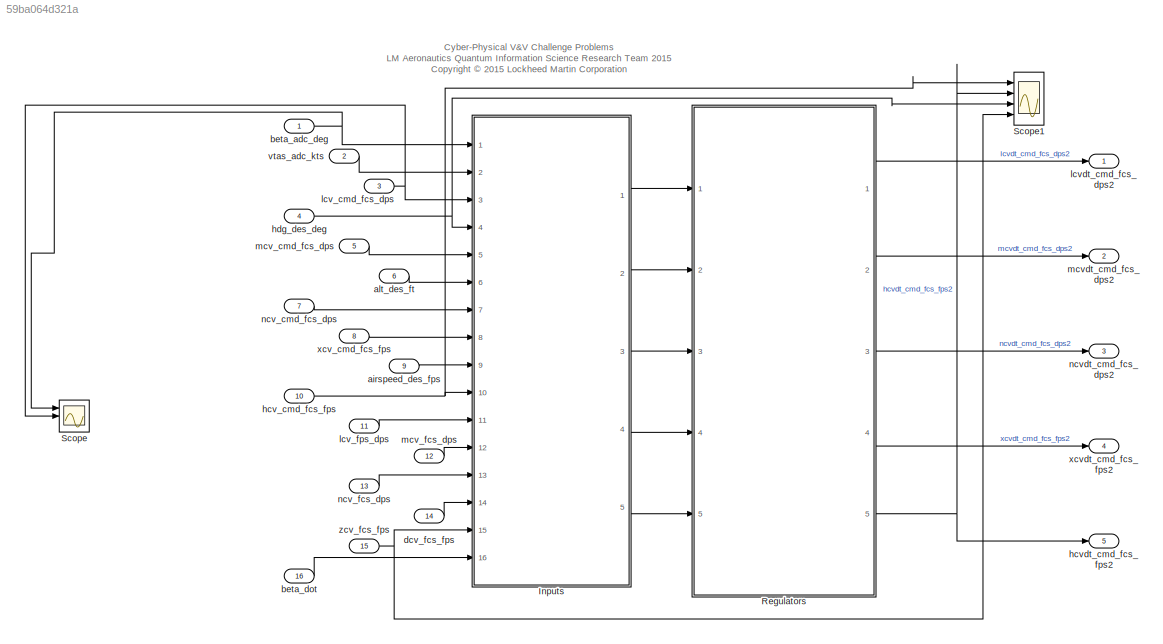
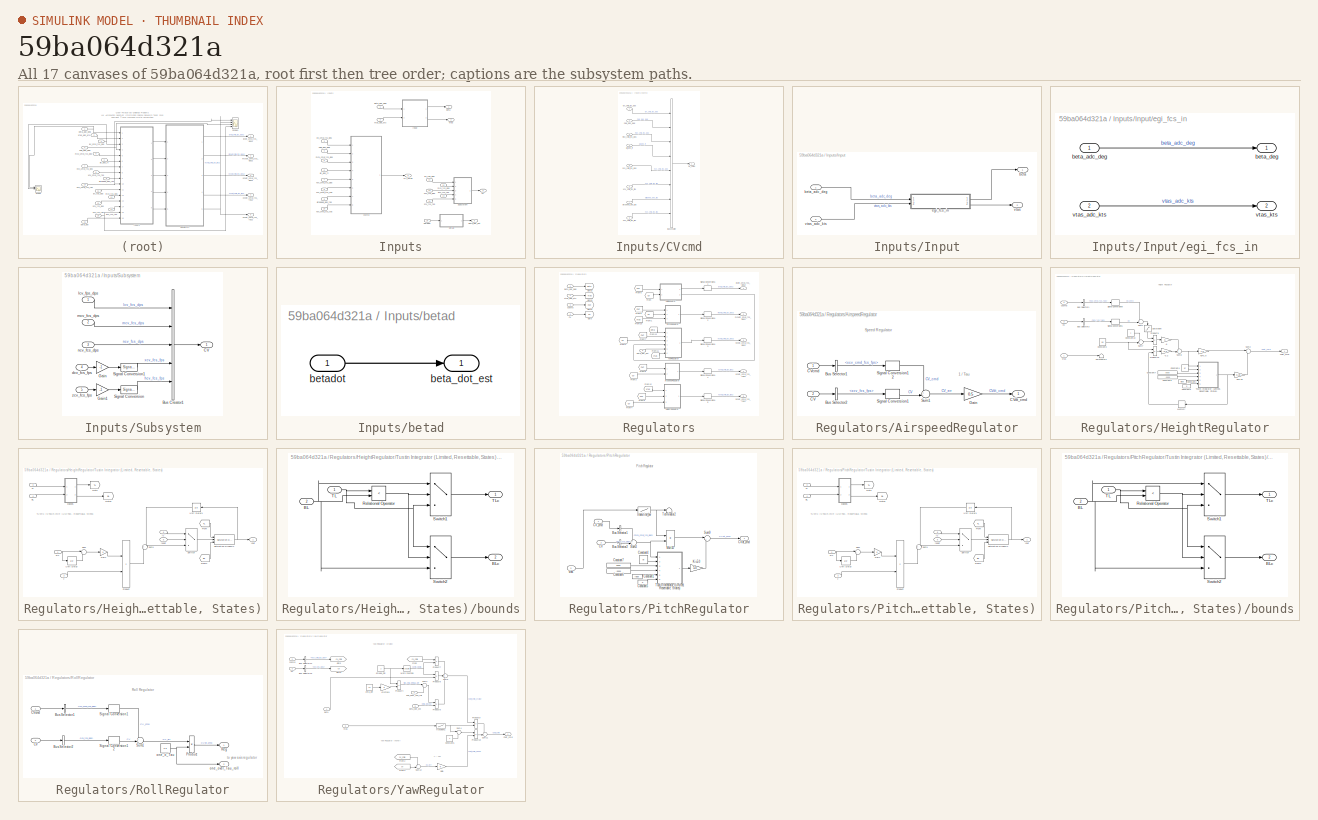
[diagram: thumbnail index - all 17 canvases of the model, root first then tree order]
MODEL slx_59ba064d321a
KIND model
CONFIG AbsTol = auto
CONFIG EnableMultiTasking = on
CONFIG FixedStep = .01
CONFIG MaxStep = auto
CONFIG MinStep = auto
CONFIG RelTol = 1e-3
CONFIG SampleTimeConstraint = Unconstrained
CONFIG Solver = ode3
CONFIG SolverName = ode3
CONFIG StartTime = 0.0
CONFIG StopTime = 10.0
WORKSPACE source: MAT-file member
WORKSPACE F = [47.5030304796 46.9110614304 47.028984707 45.6862216169 44.6182372756 0]
WORKSPACE FR = [-46.5418915863 -46.5418915863 -46.5418915863 -46.5418915863 -46.5418915863 -46.5418915863 -46.5418915863 -46.5418915863 -46.5418915863 -46.5418915863 -46.5418915863 -46.5418915863 ... (901 elements, 1x901)]
BLOCK [SubSystem] Inputs
  Ports = [16, 5]
  RequestExecContextInheritance = off
BLOCK [Outport] Inputs/CV
  IconDisplay = Port number
  Port = 4
BLOCK [SubSystem] Inputs/CVcmd
  Ports = [8, 1]
  RequestExecContextInheritance = off
BLOCK [BusCreator] Inputs/CVcmd/Bus Creator
  DisplayOption = bar
  InheritFromInputs = on
  Inputs = 8
  Ports = [8, 1]
BLOCK [Outport] Inputs/CVcmd/OL_Cmds
  IconDisplay = Port number
BLOCK [Inport] Inputs/CVcmd/airspeed_des_fps
  IconDisplay = Port number
  Port = 7
BLOCK [Inport] Inputs/CVcmd/alt_des_ft
  IconDisplay = Port number
  Port = 4
BLOCK [Inport] Inputs/CVcmd/hcv_cmd_fcs_fps
  IconDisplay = Port number
  Port = 8
BLOCK [Inport] Inputs/CVcmd/hdg_des_deg
  IconDisplay = Port number
  Port = 2
BLOCK [Inport] Inputs/CVcmd/lcv_cmd_fcs_dps 
  IconDisplay = Port number
BLOCK [Inport] Inputs/CVcmd/mcv_cmd_fcs_dps
  IconDisplay = Port number
  Port = 3
BLOCK [Inport] Inputs/CVcmd/ncv_cmd_fcs_dps
  IconDisplay = Port number
  Port = 5
BLOCK [Inport] Inputs/CVcmd/xcv_cmd_fcs_fps
  IconDisplay = Port number
  Port = 6
BLOCK [SubSystem] Inputs/Input
  Ports = [2, 2]
  RequestExecContextInheritance = off
BLOCK [Outport] Inputs/Input/beta
  IconDisplay = Port number
BLOCK [Inport] Inputs/Input/beta_adc_deg
  IconDisplay = Port number
BLOCK [SubSystem] Inputs/Input/egi_fcs_in
  Ports = [2, 2]
  RequestExecContextInheritance = off
BLOCK [Inport] Inputs/Input/egi_fcs_in/beta_adc_deg
  IconDisplay = Port number
BLOCK [Outport] Inputs/Input/egi_fcs_in/beta_deg
  IconDisplay = Port number
BLOCK [Inport] Inputs/Input/egi_fcs_in/vtas_adc_kts
  IconDisplay = Port number
  Port = 2
BLOCK [Outport] Inputs/Input/egi_fcs_in/vtas_kts
  IconDisplay = Port number
  Port = 2
BLOCK [Outport] Inputs/Input/vtas
  IconDisplay = Port number
  Port = 2
BLOCK [Inport] Inputs/Input/vtas_adc_kts
  IconDisplay = Port number
  Port = 2
BLOCK [Outport] Inputs/OL_Cmds
  IconDisplay = Port number
  Port = 3
BLOCK [SubSystem] Inputs/Subsystem
  Ports = [5, 1]
  RequestExecContextInheritance = off
BLOCK [BusCreator] Inputs/Subsystem/Bus Creator1
  DisplayOption = bar
  InheritFromInputs = on
  Inputs = 5
  Ports = [5, 1]
BLOCK [Outport] Inputs/Subsystem/CV
  IconDisplay = Port number
BLOCK [Gain] Inputs/Subsystem/Gain
  Gain = -1
  OutDataTypeStr = Inherit: Inherit via internal rule
  ParamDataTypeStr = Inherit: Inherit via internal rule
  SaturateOnIntegerOverflow = off
BLOCK [Gain] Inputs/Subsystem/Gain1
  Gain = -1
  OutDataTypeStr = Inherit: Inherit via internal rule
  ParamDataTypeStr = Inherit: Inherit via internal rule
  SaturateOnIntegerOverflow = off
BLOCK [SignalConversion] Inputs/Subsystem/Signal Conversion
  ConversionOutput = Contiguous copy
  OverrideOpt = off
BLOCK [SignalConversion] Inputs/Subsystem/Signal Conversion1
  ConversionOutput = Contiguous copy
  OverrideOpt = off
BLOCK [Inport] Inputs/Subsystem/dcv_fcs_fps
  IconDisplay = Port number
  Port = 4
BLOCK [Inport] Inputs/Subsystem/lcv_fps_dps
  IconDisplay = Port number
BLOCK [Inport] Inputs/Subsystem/mcv_fcs_dps
  IconDisplay = Port number
  Port = 2
BLOCK [Inport] Inputs/Subsystem/ncv_fcs_dps
  IconDisplay = Port number
  Port = 3
BLOCK [Inport] Inputs/Subsystem/zcv_fcs_fps
  IconDisplay = Port number
  Port = 5
BLOCK [Inport] Inputs/airspeed_des_fps
  IconDisplay = Port number
  Port = 9
BLOCK [Inport] Inputs/alt_des_ft
  IconDisplay = Port number
  Port = 6
BLOCK [Outport] Inputs/beta
  IconDisplay = Port number
BLOCK [Inport] Inputs/beta_adc_deg
  IconDisplay = Port number
BLOCK [Outport] Inputs/beta_dot_est
  IconDisplay = Port number
  Port = 5
BLOCK [SubSystem] Inputs/betad
  Ports = [1, 1]
  RequestExecContextInheritance = off
BLOCK [Outport] Inputs/betad/beta_dot_est
  IconDisplay = Port number
BLOCK [Inport] Inputs/betad/betadot
  IconDisplay = Port number
BLOCK [Inport] Inputs/betadot
  IconDisplay = Port number
  Port = 16
BLOCK [Inport] Inputs/dcv_fcs_fps
  IconDisplay = Port number
  Port = 14
BLOCK [Inport] Inputs/hcv_cmd_fcs_fps
  IconDisplay = Port number
  Port = 10
BLOCK [Inport] Inputs/hdg_des_deg
  IconDisplay = Port number
  Port = 4
BLOCK [Inport] Inputs/lcv_cmd_fcs_dps 
  IconDisplay = Port number
  Port = 3
BLOCK [Inport] Inputs/lcv_fps_dps
  IconDisplay = Port number
  Port = 11
BLOCK [Inport] Inputs/mcv_cmd_fcs_dps
  IconDisplay = Port number
  Port = 5
BLOCK [Inport] Inputs/mcv_fcs_dps
  IconDisplay = Port number
  Port = 12
BLOCK [Inport] Inputs/ncv_cmd_fcs_dps
  IconDisplay = Port number
  Port = 7
BLOCK [Inport] Inputs/ncv_fcs_dps
  IconDisplay = Port number
  Port = 13
BLOCK [Outport] Inputs/vtas
  IconDisplay = Port number
  Port = 2
BLOCK [Inport] Inputs/vtas_adc_kts
  IconDisplay = Port number
  Port = 2
BLOCK [Inport] Inputs/xcv_cmd_fcs_fps
  IconDisplay = Port number
  Port = 8
BLOCK [Inport] Inputs/zcv_fcs_fps
  IconDisplay = Port number
  Port = 15
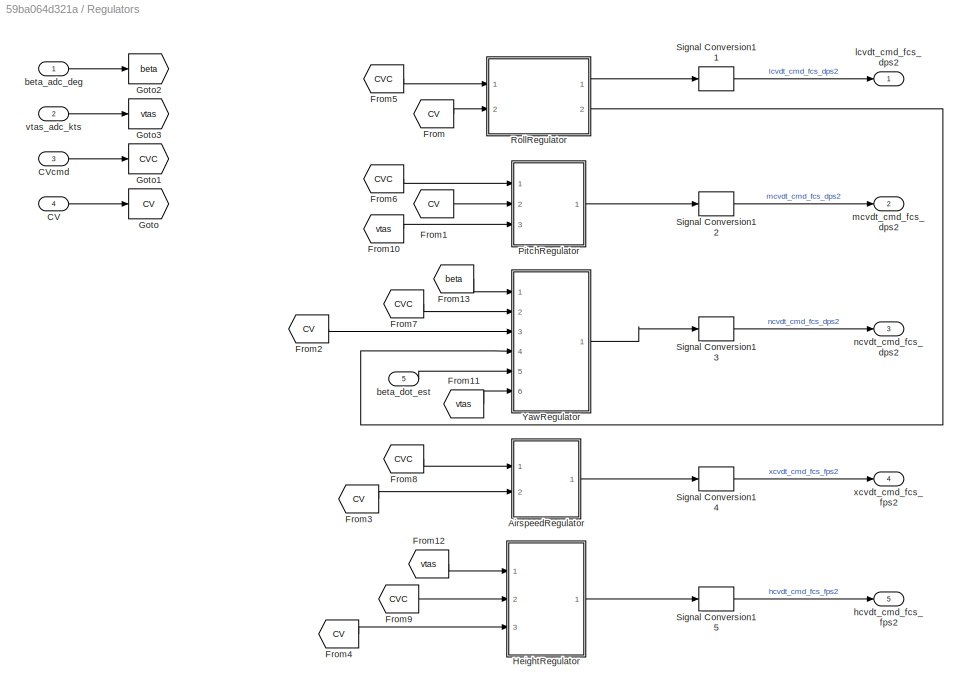
BLOCK [SubSystem] Regulators
  Ports = [5, 5]
  RequestExecContextInheritance = off
BLOCK [SubSystem] Regulators/AirspeedRegulator
  Ports = [2, 1]
  RequestExecContextInheritance = off
BLOCK [BusSelector] Regulators/AirspeedRegulator/Bus Selector1
  OutputAsBus = off
  OutputSignals = xcv_cmd_fcs_fps
  Ports = [1, 1]
BLOCK [BusSelector] Regulators/AirspeedRegulator/Bus Selector2
  OutputAsBus = off
  OutputSignals = xcv_fcs_fps
  Ports = [1, 1]
BLOCK [Inport] Regulators/AirspeedRegulator/CV
  IconDisplay = Port number
  Port = 2
BLOCK [Inport] Regulators/AirspeedRegulator/CVcmd
  IconDisplay = Port number
BLOCK [Outport] Regulators/AirspeedRegulator/CVdt_cmd
  IconDisplay = Port number
BLOCK [Gain] Regulators/AirspeedRegulator/Gain
  Gain = 0.5
  OutDataTypeStr = Inherit: Inherit via internal rule
  ParamDataTypeStr = Inherit: Inherit via internal rule
  SaturateOnIntegerOverflow = off
BLOCK [SignalConversion] Regulators/AirspeedRegulator/Signal Conversion1
  ConversionOutput = Contiguous copy
  OverrideOpt = on
BLOCK [SignalConversion] Regulators/AirspeedRegulator/Signal Conversion12
  ConversionOutput = Contiguous copy
  OverrideOpt = on
BLOCK [Sum] Regulators/AirspeedRegulator/Sum1
  IconShape = round
  Inputs = +-|
  Ports = [2, 1]
BLOCK [Inport] Regulators/CV
  IconDisplay = Port number
  Port = 4
BLOCK [Inport] Regulators/CVcmd
  IconDisplay = Port number
  Port = 3
BLOCK [From] Regulators/From
  GotoTag = CV
BLOCK [From] Regulators/From1
  GotoTag = CV
BLOCK [From] Regulators/From10
  GotoTag = vtas
BLOCK [From] Regulators/From11
  GotoTag = vtas
BLOCK [From] Regulators/From12
  GotoTag = vtas
BLOCK [From] Regulators/From13
  GotoTag = beta
BLOCK [From] Regulators/From2
  GotoTag = CV
BLOCK [From] Regulators/From3
  GotoTag = CV
BLOCK [From] Regulators/From4
  GotoTag = CV
BLOCK [From] Regulators/From5
  GotoTag = CVC
BLOCK [From] Regulators/From6
  GotoTag = CVC
BLOCK [From] Regulators/From7
  GotoTag = CVC
BLOCK [From] Regulators/From8
  GotoTag = CVC
BLOCK [From] Regulators/From9
  GotoTag = CVC
BLOCK [Goto] Regulators/Goto
  GotoTag = CV
BLOCK [Goto] Regulators/Goto1
  GotoTag = CVC
BLOCK [Goto] Regulators/Goto2
  GotoTag = beta
BLOCK [Goto] Regulators/Goto3
  GotoTag = vtas
BLOCK [SubSystem] Regulators/HeightRegulator
  Ports = [3, 1]
  RequestExecContextInheritance = off
BLOCK [Gain] Regulators/HeightRegulator/-0.2
  Gain = -0.2
  OutDataTypeStr = Inherit: Inherit via internal rule
  ParamDataTypeStr = Inherit: Inherit via internal rule
  SaturateOnIntegerOverflow = off
BLOCK [Gain] Regulators/HeightRegulator/-8
  OutDataTypeStr = Inherit: Inherit via internal rule
  ParamDataTypeStr = Inherit: Inherit via internal rule
  SaturateOnIntegerOverflow = off
BLOCK [BusSelector] Regulators/HeightRegulator/Bus Selector1
  OutputAsBus = off
  OutputSignals = hcv_cmd_fcs_fps
  Ports = [1, 1]
BLOCK [BusSelector] Regulators/HeightRegulator/Bus Selector3
  OutputAsBus = off
  OutputSignals = hcv_fcs_fps
  Ports = [1, 1]
BLOCK [Inport] Regulators/HeightRegulator/CV
  IconDisplay = Port number
  Port = 3
BLOCK [Inport] Regulators/HeightRegulator/CVcmd
  IconDisplay = Port number
  Port = 2
BLOCK [Outport] Regulators/HeightRegulator/CVdt_cmd
  IconDisplay = Port number
BLOCK [Constant] Regulators/HeightRegulator/Constant1
  Value = false
BLOCK [Constant] Regulators/HeightRegulator/Constant10
BLOCK [Constant] Regulators/HeightRegulator/Constant3
  Value = 0.0
BLOCK [Constant] Regulators/HeightRegulator/Constant4
  Value = dt
BLOCK [Constant] Regulators/HeightRegulator/Constant5
  Value = 0
BLOCK [Constant] Regulators/HeightRegulator/Constant6
  Value = -9999
BLOCK [Constant] Regulators/HeightRegulator/Constant7
  Value = 9999
BLOCK [Gain] Regulators/HeightRegulator/Ki=0.25
  Gain = 0.25
  OutDataTypeStr = Inherit: Inherit via internal rule
  ParamDataTypeStr = Inherit: Inherit via internal rule
  SaturateOnIntegerOverflow = off
BLOCK [Gain] Regulators/HeightRegulator/Kp=1.0
  Gain = 1.0
  OutDataTypeStr = Inherit: Inherit via internal rule
  ParamDataTypeStr = Inherit: Inherit via internal rule
  SaturateOnIntegerOverflow = off
BLOCK [Memory] Regulators/HeightRegulator/Memory
BLOCK [Product] Regulators/HeightRegulator/Product10
  InputSameDT = off
  Ports = [2, 1]
  RndMeth = Floor
BLOCK [Product] Regulators/HeightRegulator/Product9
  InputSameDT = off
  Ports = [2, 1]
  RndMeth = Floor
BLOCK [Saturate] Regulators/HeightRegulator/Saturation
  InputPortMap = u0
  LowerLimit = -1
  Ports = [1, 1]
  UpperLimit = 1
BLOCK [SignalConversion] Regulators/HeightRegulator/Signal Conversion1
  ConversionOutput = Contiguous copy
  OverrideOpt = on
BLOCK [SignalConversion] Regulators/HeightRegulator/Signal Conversion9
  ConversionOutput = Contiguous copy
  OverrideOpt = on
BLOCK [Sum] Regulators/HeightRegulator/Sum1
  IconShape = round
  Inputs = +-|
  Ports = [2, 1]
BLOCK [Sum] Regulators/HeightRegulator/Sum2
  IconShape = round
  Inputs = |++
  Ports = [2, 1]
BLOCK [Sum] Regulators/HeightRegulator/Sum7
  IconShape = round
  InputSameDT = off
  Inputs = +-|
  OutDataTypeStr = Inherit: Inherit via internal rule
  Ports = [2, 1]
  SaturateOnIntegerOverflow = off
BLOCK [Sum] Regulators/HeightRegulator/Sum8
  IconShape = round
  InputSameDT = off
  Inputs = ++|
  OutDataTypeStr = Inherit: Inherit via internal rule
  Ports = [2, 1]
  SaturateOnIntegerOverflow = off
BLOCK [Terminator] Regulators/HeightRegulator/Terminator2
BLOCK [SubSystem] Regulators/HeightRegulator/Tustin Integrator (Limited, Resettable, States)
  Ports = [6, 1]
  RequestExecContextInheritance = off
BLOCK [Inport] Regulators/HeightRegulator/Tustin Integrator (Limited, Resettable, States)/BL
  IconDisplay = Port number
  Port = 4
BLOCK [From] Regulators/HeightRegulator/Tustin Integrator (Limited, Resettable, States)/From
  GotoTag = TL
BLOCK [From] Regulators/HeightRegulator/Tustin Integrator (Limited, Resettable, States)/From1
  GotoTag = BL
BLOCK [Gain] Regulators/HeightRegulator/Tustin Integrator (Limited, Resettable, States)/Gain
  Gain = .5
  OutDataTypeStr = Inherit: Inherit via internal rule
  ParamDataTypeStr = Inherit: Inherit via internal rule
  SaturateOnIntegerOverflow = off
BLOCK [Goto] Regulators/HeightRegulator/Tustin Integrator (Limited, Resettable, States)/Goto
  GotoTag = TL
BLOCK [Goto] Regulators/HeightRegulator/Tustin Integrator (Limited, Resettable, States)/Goto1
  GotoTag = BL
BLOCK [Product] Regulators/HeightRegulator/Tustin Integrator (Limited, Resettable, States)/Product
  InputSameDT = off
  OutDataTypeStr = Inherit: Inherit via internal rule
  Ports = [2, 1]
  SaturateOnIntegerOverflow = off
BLOCK [Reference] Regulators/HeightRegulator/Tustin Integrator (Limited, Resettable, States)/Saturation Dynamic  REF=simulink/Discontinuities/Saturation
Dynamic
  Ports = [3, 1]
  SourceBlock = simulink/Discontinuities/Saturation\nDynamic
  SourceProductBaseCode = SL
  SourceProductName = Simulink
  SourceType = Saturation Dynamic
BLOCK [Sum] Regulators/HeightRegulator/Tustin Integrator (Limited, Resettable, States)/Sum
  IconShape = round
  InputSameDT = off
  Inputs = |++
  OutDataTypeStr = Inherit: Inherit via internal rule
  Ports = [2, 1]
  SaturateOnIntegerOverflow = off
BLOCK [Sum] Regulators/HeightRegulator/Tustin Integrator (Limited, Resettable, States)/Sum1
  IconShape = round
  InputSameDT = off
  OutDataTypeStr = Inherit: Inherit via internal rule
  Ports = [2, 1]
  SaturateOnIntegerOverflow = off
BLOCK [Switch] Regulators/HeightRegulator/Tustin Integrator (Limited, Resettable, States)/Switch
  Criteria = u2 ~= 0
  InputSameDT = off
  SaturateOnIntegerOverflow = off
  Threshold = 0.5
BLOCK [Inport] Regulators/HeightRegulator/Tustin Integrator (Limited, Resettable, States)/T
  IconDisplay = Port number
  Port = 2
BLOCK [Inport] Regulators/HeightRegulator/Tustin Integrator (Limited, Resettable, States)/TL
  IconDisplay = Port number
  Port = 3
BLOCK [UnitDelay] Regulators/HeightRegulator/Tustin Integrator (Limited, Resettable, States)/Unit Delay
  InputProcessing = Elements as channels (sample based)
  SampleTime = -1
BLOCK [UnitDelay] Regulators/HeightRegulator/Tustin Integrator (Limited, Resettable, States)/Unit Delay1
  InputProcessing = Elements as channels (sample based)
  SampleTime = -1
BLOCK [SubSystem] Regulators/HeightRegulator/Tustin Integrator (Limited, Resettable, States)/bounds
  Ports = [2, 2]
  RequestExecContextInheritance = off
BLOCK [Inport] Regulators/HeightRegulator/Tustin Integrator (Limited, Resettable, States)/bounds/BL
  IconDisplay = Port number
  Port = 2
BLOCK [Outport] Regulators/HeightRegulator/Tustin Integrator (Limited, Resettable, States)/bounds/BLc
  IconDisplay = Port number
  Port = 2
BLOCK [RelationalOperator] Regulators/HeightRegulator/Tustin Integrator (Limited, Resettable, States)/bounds/Relational Operator
  InputSameDT = off
  Operator = <
  OutDataTypeStr = boolean
  Ports = [2, 1]
BLOCK [Switch] Regulators/HeightRegulator/Tustin Integrator (Limited, Resettable, States)/bounds/Switch1
  Criteria = u2 ~= 0
  InputSameDT = off
  SaturateOnIntegerOverflow = off
  Threshold = 0.5
BLOCK [Switch] Regulators/HeightRegulator/Tustin Integrator (Limited, Resettable, States)/bounds/Switch2
  Criteria = u2 ~= 0
  InputSameDT = off
  SaturateOnIntegerOverflow = off
  Threshold = 0.5
BLOCK [Inport] Regulators/HeightRegulator/Tustin Integrator (Limited, Resettable, States)/bounds/TL
  IconDisplay = Port number
BLOCK [Outport] Regulators/HeightRegulator/Tustin Integrator (Limited, Resettable, States)/bounds/TLc
  IconDisplay = Port number
BLOCK [Inport] Regulators/HeightRegulator/Tustin Integrator (Limited, Resettable, States)/ic
  IconDisplay = Port number
  Port = 6
BLOCK [Inport] Regulators/HeightRegulator/Tustin Integrator (Limited, Resettable, States)/reset
  IconDisplay = Port number
  Port = 5
BLOCK [Inport] Regulators/HeightRegulator/Tustin Integrator (Limited, Resettable, States)/xin
  IconDisplay = Port number
BLOCK [Outport] Regulators/HeightRegulator/Tustin Integrator (Limited, Resettable, States)/yout
  IconDisplay = Port number
BLOCK [Inport] Regulators/HeightRegulator/vtas
  IconDisplay = Port number
BLOCK [SubSystem] Regulators/PitchRegulator
  Ports = [3, 1]
  RequestExecContextInheritance = off
BLOCK [BusSelector] Regulators/PitchRegulator/Bus Selector1
  OutputAsBus = off
  OutputSignals = mcv_cmd_fcs_dps
  Ports = [1, 1]
BLOCK [BusSelector] Regulators/PitchRegulator/Bus Selector2
  OutputAsBus = off
  OutputSignals = mcv_fcs_dps
  Ports = [1, 1]
BLOCK [Inport] Regulators/PitchRegulator/CV
  IconDisplay = Port number
  Port = 2
BLOCK [Inport] Regulators/PitchRegulator/CV_cmd
  IconDisplay = Port number
BLOCK [Outport] Regulators/PitchRegulator/CVdt_cmd
  IconDisplay = Port number
BLOCK [Constant] Regulators/PitchRegulator/Constant1
  Value = false
BLOCK [Constant] Regulators/PitchRegulator/Constant4
  Value = dt
BLOCK [Constant] Regulators/PitchRegulator/Constant5
  Value = 0
BLOCK [Constant] Regulators/PitchRegulator/Constant6
  Value = -9999
BLOCK [Constant] Regulators/PitchRegulator/Constant7
  Value = 9999
BLOCK [Gain] Regulators/PitchRegulator/Ki=5.0
  Gain = 5.0
  OutDataTypeStr = Inherit: Inherit via internal rule
  ParamDataTypeStr = Inherit: Inherit via internal rule
  SaturateOnIntegerOverflow = off
BLOCK [Product] Regulators/PitchRegulator/Mult10
  Ports = [2, 1]
  RndMeth = Floor
BLOCK [Sum] Regulators/PitchRegulator/Sum3
  IconShape = round
  Inputs = +-|
  Ports = [2, 1]
BLOCK [Sum] Regulators/PitchRegulator/Sum9
  IconShape = round
  Inputs = |++
  Ports = [2, 1]
BLOCK [Terminator] Regulators/PitchRegulator/Terminator2
BLOCK [SubSystem] Regulators/PitchRegulator/Tustin Integrator (Limited, Resettable, States)
  Ports = [6, 1]
  RequestExecContextInheritance = off
BLOCK [Inport] Regulators/PitchRegulator/Tustin Integrator (Limited, Resettable, States)/BL
  IconDisplay = Port number
  Port = 4
BLOCK [From] Regulators/PitchRegulator/Tustin Integrator (Limited, Resettable, States)/From
  GotoTag = TL
BLOCK [From] Regulators/PitchRegulator/Tustin Integrator (Limited, Resettable, States)/From1
  GotoTag = BL
BLOCK [Gain] Regulators/PitchRegulator/Tustin Integrator (Limited, Resettable, States)/Gain
  Gain = .5
  OutDataTypeStr = Inherit: Inherit via internal rule
  ParamDataTypeStr = Inherit: Inherit via internal rule
  SaturateOnIntegerOverflow = off
BLOCK [Goto] Regulators/PitchRegulator/Tustin Integrator (Limited, Resettable, States)/Goto
  GotoTag = TL
BLOCK [Goto] Regulators/PitchRegulator/Tustin Integrator (Limited, Resettable, States)/Goto1
  GotoTag = BL
BLOCK [Product] Regulators/PitchRegulator/Tustin Integrator (Limited, Resettable, States)/Product
  InputSameDT = off
  OutDataTypeStr = Inherit: Inherit via internal rule
  Ports = [2, 1]
  SaturateOnIntegerOverflow = off
BLOCK [Reference] Regulators/PitchRegulator/Tustin Integrator (Limited, Resettable, States)/Saturation Dynamic  REF=simulink/Discontinuities/Saturation
Dynamic
  Ports = [3, 1]
  SourceBlock = simulink/Discontinuities/Saturation\nDynamic
  SourceProductBaseCode = SL
  SourceProductName = Simulink
  SourceType = Saturation Dynamic
BLOCK [Sum] Regulators/PitchRegulator/Tustin Integrator (Limited, Resettable, States)/Sum
  IconShape = round
  InputSameDT = off
  Inputs = |++
  OutDataTypeStr = Inherit: Inherit via internal rule
  Ports = [2, 1]
  SaturateOnIntegerOverflow = off
BLOCK [Sum] Regulators/PitchRegulator/Tustin Integrator (Limited, Resettable, States)/Sum1
  IconShape = round
  InputSameDT = off
  OutDataTypeStr = Inherit: Inherit via internal rule
  Ports = [2, 1]
  SaturateOnIntegerOverflow = off
BLOCK [Switch] Regulators/PitchRegulator/Tustin Integrator (Limited, Resettable, States)/Switch
  Criteria = u2 ~= 0
  InputSameDT = off
  SaturateOnIntegerOverflow = off
  Threshold = 0.5
BLOCK [Inport] Regulators/PitchRegulator/Tustin Integrator (Limited, Resettable, States)/T
  IconDisplay = Port number
  Port = 2
BLOCK [Inport] Regulators/PitchRegulator/Tustin Integrator (Limited, Resettable, States)/TL
  IconDisplay = Port number
  Port = 3
BLOCK [UnitDelay] Regulators/PitchRegulator/Tustin Integrator (Limited, Resettable, States)/Unit Delay
  InputProcessing = Elements as channels (sample based)
  SampleTime = -1
BLOCK [UnitDelay] Regulators/PitchRegulator/Tustin Integrator (Limited, Resettable, States)/Unit Delay1
  InputProcessing = Elements as channels (sample based)
  SampleTime = -1
BLOCK [SubSystem] Regulators/PitchRegulator/Tustin Integrator (Limited, Resettable, States)/bounds
  Ports = [2, 2]
  RequestExecContextInheritance = off
BLOCK [Inport] Regulators/PitchRegulator/Tustin Integrator (Limited, Resettable, States)/bounds/BL
  IconDisplay = Port number
  Port = 2
BLOCK [Outport] Regulators/PitchRegulator/Tustin Integrator (Limited, Resettable, States)/bounds/BLc
  IconDisplay = Port number
  Port = 2
BLOCK [RelationalOperator] Regulators/PitchRegulator/Tustin Integrator (Limited, Resettable, States)/bounds/Relational Operator
  InputSameDT = off
  Operator = <
  OutDataTypeStr = boolean
  Ports = [2, 1]
BLOCK [Switch] Regulators/PitchRegulator/Tustin Integrator (Limited, Resettable, States)/bounds/Switch1
  Criteria = u2 ~= 0
  InputSameDT = off
  SaturateOnIntegerOverflow = off
  Threshold = 0.5
BLOCK [Switch] Regulators/PitchRegulator/Tustin Integrator (Limited, Resettable, States)/bounds/Switch2
  Criteria = u2 ~= 0
  InputSameDT = off
  SaturateOnIntegerOverflow = off
  Threshold = 0.5
BLOCK [Inport] Regulators/PitchRegulator/Tustin Integrator (Limited, Resettable, States)/bounds/TL
  IconDisplay = Port number
BLOCK [Outport] Regulators/PitchRegulator/Tustin Integrator (Limited, Resettable, States)/bounds/TLc
  IconDisplay = Port number
BLOCK [Inport] Regulators/PitchRegulator/Tustin Integrator (Limited, Resettable, States)/ic
  IconDisplay = Port number
  Port = 6
BLOCK [Inport] Regulators/PitchRegulator/Tustin Integrator (Limited, Resettable, States)/reset
  IconDisplay = Port number
  Port = 5
BLOCK [Inport] Regulators/PitchRegulator/Tustin Integrator (Limited, Resettable, States)/xin
  IconDisplay = Port number
BLOCK [Outport] Regulators/PitchRegulator/Tustin Integrator (Limited, Resettable, States)/yout
  IconDisplay = Port number
BLOCK [Lookup] Regulators/PitchRegulator/transition_bvr
  InputValues = [120 185]
  SaturateOnIntegerOverflow = off
  Table = [15 20]
BLOCK [Inport] Regulators/PitchRegulator/vtas
  IconDisplay = Port number
  Port = 3
BLOCK [SubSystem] Regulators/RollRegulator
  Ports = [2, 2]
  RequestExecContextInheritance = off
BLOCK [BusSelector] Regulators/RollRegulator/Bus Selector1
  OutputAsBus = off
  OutputSignals = lcv_cmd_fcs_dps
  Ports = [1, 1]
BLOCK [BusSelector] Regulators/RollRegulator/Bus Selector2
  OutputAsBus = off
  OutputSignals = lcv_fcs_dps
  Ports = [1, 1]
BLOCK [Inport] Regulators/RollRegulator/CV
  IconDisplay = Port number
  Port = 2
BLOCK [Inport] Regulators/RollRegulator/CVcmd
  IconDisplay = Port number
BLOCK [Product] Regulators/RollRegulator/Product
  InputSameDT = off
  OutDataTypeStr = Inherit: Inherit via internal rule
  Ports = [2, 1]
  SaturateOnIntegerOverflow = off
BLOCK [Outport] Regulators/RollRegulator/Reg
  IconDisplay = Port number
BLOCK [SignalConversion] Regulators/RollRegulator/Signal Conversion1
  ConversionOutput = Contiguous copy
  OverrideOpt = on
BLOCK [SignalConversion] Regulators/RollRegulator/Signal Conversion12
  ConversionOutput = Contiguous copy
  OverrideOpt = on
BLOCK [Sum] Regulators/RollRegulator/Sum1
  IconShape = round
  Inputs = +-|
  Ports = [2, 1]
BLOCK [Constant] Regulators/RollRegulator/one_o_Tau
  Value = 2.5
BLOCK [Outport] Regulators/RollRegulator/one_over_Tau_roll
  IconDisplay = Port number
  Port = 2
BLOCK [SignalConversion] Regulators/Signal Conversion11
  ConversionOutput = Contiguous copy
  OverrideOpt = on
BLOCK [SignalConversion] Regulators/Signal Conversion12
  ConversionOutput = Contiguous copy
  OverrideOpt = on
BLOCK [SignalConversion] Regulators/Signal Conversion13
  ConversionOutput = Contiguous copy
  OverrideOpt = on
BLOCK [SignalConversion] Regulators/Signal Conversion14
  ConversionOutput = Contiguous copy
  OverrideOpt = on
BLOCK [SignalConversion] Regulators/Signal Conversion15
  ConversionOutput = Contiguous copy
  OverrideOpt = on
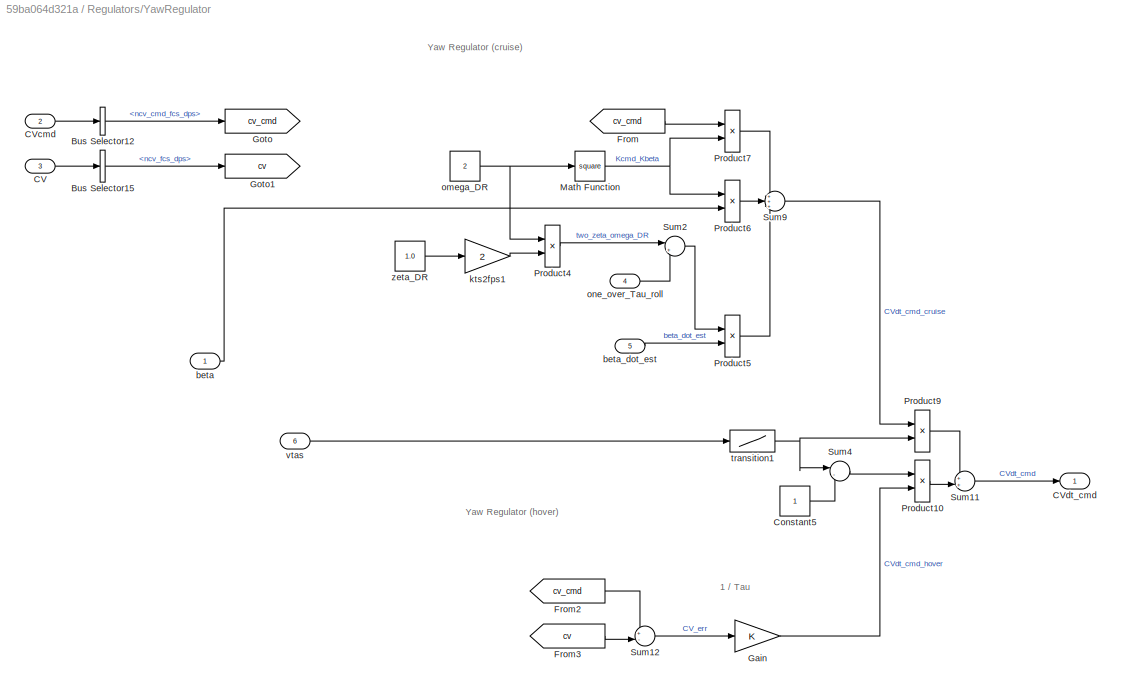
BLOCK [SubSystem] Regulators/YawRegulator
  Ports = [6, 1]
  RequestExecContextInheritance = off
BLOCK [BusSelector] Regulators/YawRegulator/Bus Selector12
  OutputAsBus = off
  OutputSignals = ncv_cmd_fcs_dps
  Ports = [1, 1]
BLOCK [BusSelector] Regulators/YawRegulator/Bus Selector15
  OutputAsBus = off
  OutputSignals = ncv_fcs_dps
  Ports = [1, 1]
BLOCK [Inport] Regulators/YawRegulator/CV
  IconDisplay = Port number
  Port = 3
BLOCK [Inport] Regulators/YawRegulator/CVcmd
  IconDisplay = Port number
  Port = 2
BLOCK [Outport] Regulators/YawRegulator/CVdt_cmd
  IconDisplay = Port number
BLOCK [Constant] Regulators/YawRegulator/Constant5
BLOCK [From] Regulators/YawRegulator/From
  GotoTag = cv_cmd
BLOCK [From] Regulators/YawRegulator/From2
  GotoTag = cv_cmd
BLOCK [From] Regulators/YawRegulator/From3
  GotoTag = cv
BLOCK [Gain] Regulators/YawRegulator/Gain
  OutDataTypeStr = Inherit: Inherit via internal rule
  ParamDataTypeStr = Inherit: Inherit via internal rule
  SaturateOnIntegerOverflow = off
BLOCK [Goto] Regulators/YawRegulator/Goto
  GotoTag = cv_cmd
BLOCK [Goto] Regulators/YawRegulator/Goto1
  GotoTag = cv
BLOCK [Math] Regulators/YawRegulator/Math Function
  Operator = square
  Ports = [1, 1]
BLOCK [Product] Regulators/YawRegulator/Product10
  InputSameDT = off
  Ports = [2, 1]
  RndMeth = Floor
BLOCK [Product] Regulators/YawRegulator/Product4
  InputSameDT = off
  Ports = [2, 1]
  RndMeth = Floor
BLOCK [Product] Regulators/YawRegulator/Product5
  InputSameDT = off
  Ports = [2, 1]
  RndMeth = Floor
BLOCK [Product] Regulators/YawRegulator/Product6
  InputSameDT = off
  Ports = [2, 1]
  RndMeth = Floor
BLOCK [Product] Regulators/YawRegulator/Product7
  InputSameDT = off
  Ports = [2, 1]
  RndMeth = Floor
BLOCK [Product] Regulators/YawRegulator/Product9
  InputSameDT = off
  Ports = [2, 1]
  RndMeth = Floor
BLOCK [Sum] Regulators/YawRegulator/Sum11
  IconShape = round
  InputSameDT = off
  Inputs = ++|
  OutDataTypeStr = Inherit: Inherit via internal rule
  Ports = [2, 1]
  SaturateOnIntegerOverflow = off
BLOCK [Sum] Regulators/YawRegulator/Sum12
  IconShape = round
  Inputs = +-|
  Ports = [2, 1]
BLOCK [Sum] Regulators/YawRegulator/Sum2
  IconShape = round
  Inputs = |+-
  Ports = [2, 1]
BLOCK [Sum] Regulators/YawRegulator/Sum4
  IconShape = round
  InputSameDT = off
  Inputs = |-+
  OutDataTypeStr = Inherit: Inherit via internal rule
  Ports = [2, 1]
  SaturateOnIntegerOverflow = off
BLOCK [Sum] Regulators/YawRegulator/Sum9
  IconShape = round
  Inputs = +++
  Ports = [3, 1]
BLOCK [Inport] Regulators/YawRegulator/beta
  IconDisplay = Port number
BLOCK [Inport] Regulators/YawRegulator/beta_dot_est
  IconDisplay = Port number
  Port = 5
BLOCK [Gain] Regulators/YawRegulator/kts2fps1
  Gain = 2
  OutDataTypeStr = Inherit: Inherit via internal rule
  ParamDataTypeStr = Inherit: Inherit via internal rule
  SaturateOnIntegerOverflow = off
BLOCK [Constant] Regulators/YawRegulator/omega_DR
  Value = 2
BLOCK [Inport] Regulators/YawRegulator/one_over_Tau_roll
  IconDisplay = Port number
  Port = 4
BLOCK [Lookup] Regulators/YawRegulator/transition1
  InputValues = transition_v
  SaturateOnIntegerOverflow = off
  Table = transition_y
BLOCK [Inport] Regulators/YawRegulator/vtas
  IconDisplay = Port number
  Port = 6
BLOCK [Constant] Regulators/YawRegulator/zeta_DR
  Value = 1.0
BLOCK [Inport] Regulators/beta_adc_deg
  IconDisplay = Port number
BLOCK [Inport] Regulators/beta_dot_est
  IconDisplay = Port number
  Port = 5
BLOCK [Outport] Regulators/hcvdt_cmd_fcs_fps2
  IconDisplay = Port number
  Port = 5
BLOCK [Outport] Regulators/lcvdt_cmd_fcs_dps2
  IconDisplay = Port number
BLOCK [Outport] Regulators/mcvdt_cmd_fcs_dps2
  IconDisplay = Port number
  Port = 2
BLOCK [Outport] Regulators/ncvdt_cmd_fcs_dps2
  IconDisplay = Port number
  Port = 3
BLOCK [Inport] Regulators/vtas_adc_kts
  IconDisplay = Port number
  Port = 2
BLOCK [Outport] Regulators/xcvdt_cmd_fcs_fps2
  IconDisplay = Port number
  Port = 4
BLOCK [Scope] Scope
  Floating = off
  NumInputPorts = 3
  Ports = [3]
  ScopeSpecificationString = Simulink.scopes.TimeScopeBlockCfg('CurrentConfiguration', extmgr.ConfigurationSet(extmgr.Configuration('Core','General UI',true),extmgr.Configuration('Core','Source UI',true),extmgr.Configuration('Sources','WiredSimulink',true),extmgr.Configuration('Visuals','Time Domain',true,'SerializedDisplays',{struct('MinYLimReal','-305.27024','MaxYLimReal','331.12689','YLabelReal','','MinYLimMag',' 0.00000',...<+1414ch>
BLOCK [Scope] Scope1
  Floating = off
  NumInputPorts = 4
  Ports = [4]
  ScopeSpecificationString = Simulink.scopes.TimeScopeBlockCfg('CurrentConfiguration', extmgr.ConfigurationSet(extmgr.Configuration('Core','General UI',true),extmgr.Configuration('Core','Source UI',true),extmgr.Configuration('Sources','WiredSimulink',true,'DataLoggingVariableName','ScopeData1'),extmgr.Configuration('Visuals','Time Domain',true,'SerializedDisplays',{struct('MinYLimReal','-0.9355','MaxYLimReal','13.32576','YLab...<+1741ch>
BLOCK [Inport] airspeed_des_fps
  IconDisplay = Port number
  OutDataTypeStr = double
  Port = 9
BLOCK [Inport] alt_des_ft
  IconDisplay = Port number
  OutDataTypeStr = double
  Port = 6
BLOCK [Inport] beta_adc_deg
  IconDisplay = Port number
  OutDataTypeStr = double
BLOCK [Inport] beta_dot
  IconDisplay = Port number
  OutDataTypeStr = double
  Port = 16
BLOCK [Inport] dcv_fcs_fps
  IconDisplay = Port number
  OutDataTypeStr = double
  Port = 14
BLOCK [Inport] hcv_cmd_fcs_fps
  IconDisplay = Port number
  OutDataTypeStr = double
  Port = 10
BLOCK [Outport] hcvdt_cmd_fcs_fps2
  IconDisplay = Port number
  Port = 5
BLOCK [Inport] hdg_des_deg
  IconDisplay = Port number
  OutDataTypeStr = double
  Port = 4
BLOCK [Inport] lcv_cmd_fcs_dps 
  IconDisplay = Port number
  OutDataTypeStr = double
  Port = 3
BLOCK [Inport] lcv_fps_dps
  IconDisplay = Port number
  OutDataTypeStr = double
  Port = 11
BLOCK [Outport] lcvdt_cmd_fcs_dps2
  IconDisplay = Port number
BLOCK [Inport] mcv_cmd_fcs_dps
  IconDisplay = Port number
  OutDataTypeStr = double
  Port = 5
BLOCK [Inport] mcv_fcs_dps
  IconDisplay = Port number
  OutDataTypeStr = double
  Port = 12
BLOCK [Outport] mcvdt_cmd_fcs_dps2
  IconDisplay = Port number
  Port = 2
BLOCK [Inport] ncv_cmd_fcs_dps
  IconDisplay = Port number
  OutDataTypeStr = double
  Port = 7
BLOCK [Inport] ncv_fcs_dps
  IconDisplay = Port number
  OutDataTypeStr = double
  Port = 13
BLOCK [Outport] ncvdt_cmd_fcs_dps2
  IconDisplay = Port number
  Port = 3
BLOCK [Inport] vtas_adc_kts
  IconDisplay = Port number
  OutDataTypeStr = double
  Port = 2
BLOCK [Inport] xcv_cmd_fcs_fps
  IconDisplay = Port number
  OutDataTypeStr = double
  Port = 8
BLOCK [Outport] xcvdt_cmd_fcs_fps2
  IconDisplay = Port number
  Port = 4
BLOCK [Inport] zcv_fcs_fps
  IconDisplay = Port number
  OutDataTypeStr = double
  Port = 15
ANNOTATION (root): Cyber-Physical V&V Challenge Problems LM Aeronautics Quantum Information Science Research Team 2015 <copyright redacted>
ANNOTATION Regulators/AirspeedRegulator: 1 / Tau
ANNOTATION Regulators/AirspeedRegulator: Speed Regulator
ANNOTATION Regulators/HeightRegulator: Height Regulator
ANNOTATION Regulators/HeightRegulator/Tustin Integrator (Limited, Resettable, States): TUSTIN INTEGRATOR (LIMITED, RESETTABLE, STATES)
ANNOTATION Regulators/PitchRegulator: Pitch Regulator
ANNOTATION Regulators/PitchRegulator/Tustin Integrator (Limited, Resettable, States): TUSTIN INTEGRATOR (LIMITED, RESETTABLE, STATES)
ANNOTATION Regulators/RollRegulator: Roll Regulator
ANNOTATION Regulators/RollRegulator: to yaw axis regulator
ANNOTATION Regulators/YawRegulator: 1 / Tau
ANNOTATION Regulators/YawRegulator: Yaw Regulator (cruise)
ANNOTATION Regulators/YawRegulator: Yaw Regulator (hover)
LINE Inputs/CVcmd/Bus Creator:1 -> Inputs/CVcmd/OL_Cmds:1
LINE Inputs/CVcmd/airspeed_des_fps:1 -> Inputs/CVcmd/Bus Creator:7
LINE Inputs/CVcmd/alt_des_ft:1 -> Inputs/CVcmd/Bus Creator:4
LINE Inputs/CVcmd/hcv_cmd_fcs_fps:1 -> Inputs/CVcmd/Bus Creator:8
LINE Inputs/CVcmd/hdg_des_deg:1 -> Inputs/CVcmd/Bus Creator:2
LINE Inputs/CVcmd/lcv_cmd_fcs_dps :1 -> Inputs/CVcmd/Bus Creator:1
LINE Inputs/CVcmd/mcv_cmd_fcs_dps:1 -> Inputs/CVcmd/Bus Creator:3
LINE Inputs/CVcmd/ncv_cmd_fcs_dps:1 -> Inputs/CVcmd/Bus Creator:5
LINE Inputs/CVcmd/xcv_cmd_fcs_fps:1 -> Inputs/CVcmd/Bus Creator:6
LINE Inputs/CVcmd:1 -> Inputs/OL_Cmds:1
LINE Inputs/Input/beta_adc_deg:1 -> Inputs/Input/egi_fcs_in:1
LINE Inputs/Input/egi_fcs_in/beta_adc_deg:1 -> Inputs/Input/egi_fcs_in/beta_deg:1
LINE Inputs/Input/egi_fcs_in/vtas_adc_kts:1 -> Inputs/Input/egi_fcs_in/vtas_kts:1
LINE Inputs/Input/egi_fcs_in:1 -> Inputs/Input/beta:1
LINE Inputs/Input/egi_fcs_in:2 -> Inputs/Input/vtas:1
LINE Inputs/Input/vtas_adc_kts:1 -> Inputs/Input/egi_fcs_in:2
LINE Inputs/Input:1 -> Inputs/beta:1
LINE Inputs/Input:2 -> Inputs/vtas:1
LINE Inputs/Subsystem/Bus Creator1:1 -> Inputs/Subsystem/CV:1
LINE Inputs/Subsystem/Gain1:1 -> Inputs/Subsystem/Signal Conversion:1
LINE Inputs/Subsystem/Gain:1 -> Inputs/Subsystem/Signal Conversion1:1
LINE Inputs/Subsystem/Signal Conversion1:1 -> Inputs/Subsystem/Bus Creator1:4
LINE Inputs/Subsystem/Signal Conversion:1 -> Inputs/Subsystem/Bus Creator1:5
LINE Inputs/Subsystem/dcv_fcs_fps:1 -> Inputs/Subsystem/Gain:1
LINE Inputs/Subsystem/lcv_fps_dps:1 -> Inputs/Subsystem/Bus Creator1:1
LINE Inputs/Subsystem/mcv_fcs_dps:1 -> Inputs/Subsystem/Bus Creator1:2
LINE Inputs/Subsystem/ncv_fcs_dps:1 -> Inputs/Subsystem/Bus Creator1:3
LINE Inputs/Subsystem/zcv_fcs_fps:1 -> Inputs/Subsystem/Gain1:1
LINE Inputs/Subsystem:1 -> Inputs/CV:1
LINE Inputs/airspeed_des_fps:1 -> Inputs/CVcmd:7
LINE Inputs/alt_des_ft:1 -> Inputs/CVcmd:4
LINE Inputs/beta_adc_deg:1 -> Inputs/Input:1
LINE Inputs/betad/betadot:1 -> Inputs/betad/beta_dot_est:1
LINE Inputs/betad:1 -> Inputs/beta_dot_est:1
LINE Inputs/betadot:1 -> Inputs/betad:1
LINE Inputs/dcv_fcs_fps:1 -> Inputs/Subsystem:4
LINE Inputs/hcv_cmd_fcs_fps:1 -> Inputs/CVcmd:8
LINE Inputs/hdg_des_deg:1 -> Inputs/CVcmd:2
LINE Inputs/lcv_cmd_fcs_dps :1 -> Inputs/CVcmd:1
LINE Inputs/lcv_fps_dps:1 -> Inputs/Subsystem:1
LINE Inputs/mcv_cmd_fcs_dps:1 -> Inputs/CVcmd:3
LINE Inputs/mcv_fcs_dps:1 -> Inputs/Subsystem:2
LINE Inputs/ncv_cmd_fcs_dps:1 -> Inputs/CVcmd:5
LINE Inputs/ncv_fcs_dps:1 -> Inputs/Subsystem:3
LINE Inputs/vtas_adc_kts:1 -> Inputs/Input:2
LINE Inputs/xcv_cmd_fcs_fps:1 -> Inputs/CVcmd:6
LINE Inputs/zcv_fcs_fps:1 -> Inputs/Subsystem:5
LINE Inputs:1 -> Regulators:1
LINE Inputs:2 -> Regulators:2
LINE Inputs:3 -> Regulators:3
LINE Inputs:4 -> Regulators:4
LINE Inputs:5 -> Regulators:5
LINE Regulators/AirspeedRegulator/Bus Selector1:1 -> Regulators/AirspeedRegulator/Signal Conversion12:1
LINE Regulators/AirspeedRegulator/Bus Selector2:1 -> Regulators/AirspeedRegulator/Signal Conversion1:1
LINE Regulators/AirspeedRegulator/CV:1 -> Regulators/AirspeedRegulator/Bus Selector2:1
LINE Regulators/AirspeedRegulator/CVcmd:1 -> Regulators/AirspeedRegulator/Bus Selector1:1
LINE Regulators/AirspeedRegulator/Gain:1 -> Regulators/AirspeedRegulator/CVdt_cmd:1
LINE Regulators/AirspeedRegulator/Signal Conversion12:1 -> Regulators/AirspeedRegulator/Sum1:1
LINE Regulators/AirspeedRegulator/Signal Conversion1:1 -> Regulators/AirspeedRegulator/Sum1:2
LINE Regulators/AirspeedRegulator/Sum1:1 -> Regulators/AirspeedRegulator/Gain:1
LINE Regulators/AirspeedRegulator:1 -> Regulators/Signal Conversion14:1
LINE Regulators/CV:1 -> Regulators/Goto:1
LINE Regulators/CVcmd:1 -> Regulators/Goto1:1
LINE Regulators/From10:1 -> Regulators/PitchRegulator:3
LINE Regulators/From11:1 -> Regulators/YawRegulator:6
LINE Regulators/From12:1 -> Regulators/HeightRegulator:1
LINE Regulators/From13:1 -> Regulators/YawRegulator:1
LINE Regulators/From1:1 -> Regulators/PitchRegulator:2
LINE Regulators/From2:1 -> Regulators/YawRegulator:3
LINE Regulators/From3:1 -> Regulators/AirspeedRegulator:2
LINE Regulators/From4:1 -> Regulators/HeightRegulator:3
LINE Regulators/From5:1 -> Regulators/RollRegulator:1
LINE Regulators/From6:1 -> Regulators/PitchRegulator:1
LINE Regulators/From7:1 -> Regulators/YawRegulator:2
LINE Regulators/From8:1 -> Regulators/AirspeedRegulator:1
LINE Regulators/From9:1 -> Regulators/HeightRegulator:2
LINE Regulators/From:1 -> Regulators/RollRegulator:2
LINE Regulators/HeightRegulator/-0.2:1 -> Regulators/HeightRegulator/Sum8:2
LINE Regulators/HeightRegulator/-8:1 -> Regulators/HeightRegulator/Sum8:1
LINE Regulators/HeightRegulator/Bus Selector1:1 -> Regulators/HeightRegulator/Signal Conversion9:1
LINE Regulators/HeightRegulator/Bus Selector3:1 -> Regulators/HeightRegulator/Signal Conversion1:1
LINE Regulators/HeightRegulator/CV:1 -> Regulators/HeightRegulator/Bus Selector3:1
LINE Regulators/HeightRegulator/CVcmd:1 -> Regulators/HeightRegulator/Bus Selector1:1
LINE Regulators/HeightRegulator/Constant10:1 -> Regulators/HeightRegulator/Sum7:1
LINE Regulators/HeightRegulator/Constant1:1 -> Regulators/HeightRegulator/Tustin Integrator (Limited, Resettable, States):5
NET Regulators/HeightRegulator/Constant3:1 -> Regulators/HeightRegulator/Product10:1, Regulators/HeightRegulator/Sum7:2
LINE Regulators/HeightRegulator/Constant4:1 -> Regulators/HeightRegulator/Tustin Integrator (Limited, Resettable, States):2
LINE Regulators/HeightRegulator/Constant5:1 -> Regulators/HeightRegulator/Tustin Integrator (Limited, Resettable, States):6
LINE Regulators/HeightRegulator/Constant6:1 -> Regulators/HeightRegulator/Tustin Integrator (Limited, Resettable, States):4
LINE Regulators/HeightRegulator/Constant7:1 -> Regulators/HeightRegulator/Tustin Integrator (Limited, Resettable, States):3
LINE Regulators/HeightRegulator/Ki=0.25:1 -> Regulators/HeightRegulator/Sum2:2
LINE Regulators/HeightRegulator/Kp=1.0:1 -> Regulators/HeightRegulator/Sum2:1
LINE Regulators/HeightRegulator/Memory:1 -> Regulators/HeightRegulator/Product10:2
LINE Regulators/HeightRegulator/Product10:1 -> Regulators/HeightRegulator/-0.2:1
LINE Regulators/HeightRegulator/Product9:1 -> Regulators/HeightRegulator/-8:1
LINE Regulators/HeightRegulator/Saturation:1 -> Regulators/HeightRegulator/Product9:1
LINE Regulators/HeightRegulator/Signal Conversion1:1 -> Regulators/HeightRegulator/Sum1:2
LINE Regulators/HeightRegulator/Signal Conversion9:1 -> Regulators/HeightRegulator/Sum1:1
LINE Regulators/HeightRegulator/Sum1:1 -> Regulators/HeightRegulator/Saturation:1
LINE Regulators/HeightRegulator/Sum2:1 -> Regulators/HeightRegulator/CVdt_cmd:1
LINE Regulators/HeightRegulator/Sum7:1 -> Regulators/HeightRegulator/Product9:2
NET Regulators/HeightRegulator/Sum8:1 -> Regulators/HeightRegulator/Kp=1.0:1, Regulators/HeightRegulator/Tustin Integrator (Limited, Resettable, States):1
LINE Regulators/HeightRegulator/Tustin Integrator (Limited, Resettable, States)/BL:1 -> Regulators/HeightRegulator/Tustin Integrator (Limited, Resettable, States)/bounds:2
LINE Regulators/HeightRegulator/Tustin Integrator (Limited, Resettable, States)/From1:1 -> Regulators/HeightRegulator/Tustin Integrator (Limited, Resettable, States)/Saturation Dynamic:3
LINE Regulators/HeightRegulator/Tustin Integrator (Limited, Resettable, States)/From:1 -> Regulators/HeightRegulator/Tustin Integrator (Limited, Resettable, States)/Saturation Dynamic:1
LINE Regulators/HeightRegulator/Tustin Integrator (Limited, Resettable, States)/Gain:1 -> Regulators/HeightRegulator/Tustin Integrator (Limited, Resettable, States)/Product:1
LINE Regulators/HeightRegulator/Tustin Integrator (Limited, Resettable, States)/Product:1 -> Regulators/HeightRegulator/Tustin Integrator (Limited, Resettable, States)/Sum1:2
NET Regulators/HeightRegulator/Tustin Integrator (Limited, Resettable, States)/Saturation Dynamic:1 -> Regulators/HeightRegulator/Tustin Integrator (Limited, Resettable, States)/Unit Delay1:1, Regulators/HeightRegulator/Tustin Integrator (Limited, Resettable, States)/yout:1
LINE Regulators/HeightRegulator/Tustin Integrator (Limited, Resettable, States)/Sum1:1 -> Regulators/HeightRegulator/Tustin Integrator (Limited, Resettable, States)/Switch:3
LINE Regulators/HeightRegulator/Tustin Integrator (Limited, Resettable, States)/Sum:1 -> Regulators/HeightRegulator/Tustin Integrator (Limited, Resettable, States)/Gain:1
LINE Regulators/HeightRegulator/Tustin Integrator (Limited, Resettable, States)/Switch:1 -> Regulators/HeightRegulator/Tustin Integrator (Limited, Resettable, States)/Saturation Dynamic:2
LINE Regulators/HeightRegulator/Tustin Integrator (Limited, Resettable, States)/T:1 -> Regulators/HeightRegulator/Tustin Integrator (Limited, Resettable, States)/Product:2
LINE Regulators/HeightRegulator/Tustin Integrator (Limited, Resettable, States)/TL:1 -> Regulators/HeightRegulator/Tustin Integrator (Limited, Resettable, States)/bounds:1
LINE Regulators/HeightRegulator/Tustin Integrator (Limited, Resettable, States)/Unit Delay1:1 -> Regulators/HeightRegulator/Tustin Integrator (Limited, Resettable, States)/Sum1:1
LINE Regulators/HeightRegulator/Tustin Integrator (Limited, Resettable, States)/Unit Delay:1 -> Regulators/HeightRegulator/Tustin Integrator (Limited, Resettable, States)/Sum:2
NET Regulators/HeightRegulator/Tustin Integrator (Limited, Resettable, States)/bounds/BL:1 -> Regulators/HeightRegulator/Tustin Integrator (Limited, Resettable, States)/bounds/Relational Operator:2, Regulators/HeightRegulator/Tustin Integrator (Limited, Resettable, States)/bounds/Switch1:1, Regulators/HeightRegulator/Tustin Integrator (Limited, Resettable, States)/bounds/Switch2:3
NET Regulators/HeightRegulator/Tustin Integrator (Limited, Resettable, States)/bounds/Relational Operator:1 -> Regulators/HeightRegulator/Tustin Integrator (Limited, Resettable, States)/bounds/Switch1:2, Regulators/HeightRegulator/Tustin Integrator (Limited, Resettable, States)/bounds/Switch2:2
LINE Regulators/HeightRegulator/Tustin Integrator (Limited, Resettable, States)/bounds/Switch1:1 -> Regulators/HeightRegulator/Tustin Integrator (Limited, Resettable, States)/bounds/TLc:1
LINE Regulators/HeightRegulator/Tustin Integrator (Limited, Resettable, States)/bounds/Switch2:1 -> Regulators/HeightRegulator/Tustin Integrator (Limited, Resettable, States)/bounds/BLc:1
NET Regulators/HeightRegulator/Tustin Integrator (Limited, Resettable, States)/bounds/TL:1 -> Regulators/HeightRegulator/Tustin Integrator (Limited, Resettable, States)/bounds/Relational Operator:1, Regulators/HeightRegulator/Tustin Integrator (Limited, Resettable, States)/bounds/Switch1:3, Regulators/HeightRegulator/Tustin Integrator (Limited, Resettable, States)/bounds/Switch2:1
LINE Regulators/HeightRegulator/Tustin Integrator (Limited, Resettable, States)/bounds:1 -> Regulators/HeightRegulator/Tustin Integrator (Limited, Resettable, States)/Goto:1
LINE Regulators/HeightRegulator/Tustin Integrator (Limited, Resettable, States)/bounds:2 -> Regulators/HeightRegulator/Tustin Integrator (Limited, Resettable, States)/Goto1:1
LINE Regulators/HeightRegulator/Tustin Integrator (Limited, Resettable, States)/ic:1 -> Regulators/HeightRegulator/Tustin Integrator (Limited, Resettable, States)/Switch:1
LINE Regulators/HeightRegulator/Tustin Integrator (Limited, Resettable, States)/reset:1 -> Regulators/HeightRegulator/Tustin Integrator (Limited, Resettable, States)/Switch:2
NET Regulators/HeightRegulator/Tustin Integrator (Limited, Resettable, States)/xin:1 -> Regulators/HeightRegulator/Tustin Integrator (Limited, Resettable, States)/Sum:1, Regulators/HeightRegulator/Tustin Integrator (Limited, Resettable, States)/Unit Delay:1
NET Regulators/HeightRegulator/Tustin Integrator (Limited, Resettable, States):1 -> Regulators/HeightRegulator/Ki=0.25:1, Regulators/HeightRegulator/Memory:1
LINE Regulators/HeightRegulator/vtas:1 -> Regulators/HeightRegulator/Terminator2:1
LINE Regulators/HeightRegulator:1 -> Regulators/Signal Conversion15:1
LINE Regulators/PitchRegulator/Bus Selector1:1 -> Regulators/PitchRegulator/Sum3:1
LINE Regulators/PitchRegulator/Bus Selector2:1 -> Regulators/PitchRegulator/Sum3:2
LINE Regulators/PitchRegulator/CV:1 -> Regulators/PitchRegulator/Bus Selector2:1
LINE Regulators/PitchRegulator/CV_cmd:1 -> Regulators/PitchRegulator/Bus Selector1:1
LINE Regulators/PitchRegulator/Constant1:1 -> Regulators/PitchRegulator/Tustin Integrator (Limited, Resettable, States):5
LINE Regulators/PitchRegulator/Constant4:1 -> Regulators/PitchRegulator/Tustin Integrator (Limited, Resettable, States):2
LINE Regulators/PitchRegulator/Constant5:1 -> Regulators/PitchRegulator/Tustin Integrator (Limited, Resettable, States):6
LINE Regulators/PitchRegulator/Constant6:1 -> Regulators/PitchRegulator/Tustin Integrator (Limited, Resettable, States):4
LINE Regulators/PitchRegulator/Constant7:1 -> Regulators/PitchRegulator/Tustin Integrator (Limited, Resettable, States):3
LINE Regulators/PitchRegulator/Ki=5.0:1 -> Regulators/PitchRegulator/Sum9:2
LINE Regulators/PitchRegulator/Mult10:1 -> Regulators/PitchRegulator/Sum9:1
NET Regulators/PitchRegulator/Sum3:1 -> Regulators/PitchRegulator/Mult10:2, Regulators/PitchRegulator/Tustin Integrator (Limited, Resettable, States):1
LINE Regulators/PitchRegulator/Sum9:1 -> Regulators/PitchRegulator/CVdt_cmd:1
LINE Regulators/PitchRegulator/Tustin Integrator (Limited, Resettable, States)/BL:1 -> Regulators/PitchRegulator/Tustin Integrator (Limited, Resettable, States)/bounds:2
LINE Regulators/PitchRegulator/Tustin Integrator (Limited, Resettable, States)/From1:1 -> Regulators/PitchRegulator/Tustin Integrator (Limited, Resettable, States)/Saturation Dynamic:3
LINE Regulators/PitchRegulator/Tustin Integrator (Limited, Resettable, States)/From:1 -> Regulators/PitchRegulator/Tustin Integrator (Limited, Resettable, States)/Saturation Dynamic:1
LINE Regulators/PitchRegulator/Tustin Integrator (Limited, Resettable, States)/Gain:1 -> Regulators/PitchRegulator/Tustin Integrator (Limited, Resettable, States)/Product:1
LINE Regulators/PitchRegulator/Tustin Integrator (Limited, Resettable, States)/Product:1 -> Regulators/PitchRegulator/Tustin Integrator (Limited, Resettable, States)/Sum1:2
NET Regulators/PitchRegulator/Tustin Integrator (Limited, Resettable, States)/Saturation Dynamic:1 -> Regulators/PitchRegulator/Tustin Integrator (Limited, Resettable, States)/Unit Delay1:1, Regulators/PitchRegulator/Tustin Integrator (Limited, Resettable, States)/yout:1
LINE Regulators/PitchRegulator/Tustin Integrator (Limited, Resettable, States)/Sum1:1 -> Regulators/PitchRegulator/Tustin Integrator (Limited, Resettable, States)/Switch:3
LINE Regulators/PitchRegulator/Tustin Integrator (Limited, Resettable, States)/Sum:1 -> Regulators/PitchRegulator/Tustin Integrator (Limited, Resettable, States)/Gain:1
LINE Regulators/PitchRegulator/Tustin Integrator (Limited, Resettable, States)/Switch:1 -> Regulators/PitchRegulator/Tustin Integrator (Limited, Resettable, States)/Saturation Dynamic:2
LINE Regulators/PitchRegulator/Tustin Integrator (Limited, Resettable, States)/T:1 -> Regulators/PitchRegulator/Tustin Integrator (Limited, Resettable, States)/Product:2
LINE Regulators/PitchRegulator/Tustin Integrator (Limited, Resettable, States)/TL:1 -> Regulators/PitchRegulator/Tustin Integrator (Limited, Resettable, States)/bounds:1
LINE Regulators/PitchRegulator/Tustin Integrator (Limited, Resettable, States)/Unit Delay1:1 -> Regulators/PitchRegulator/Tustin Integrator (Limited, Resettable, States)/Sum1:1
LINE Regulators/PitchRegulator/Tustin Integrator (Limited, Resettable, States)/Unit Delay:1 -> Regulators/PitchRegulator/Tustin Integrator (Limited, Resettable, States)/Sum:2
NET Regulators/PitchRegulator/Tustin Integrator (Limited, Resettable, States)/bounds/BL:1 -> Regulators/PitchRegulator/Tustin Integrator (Limited, Resettable, States)/bounds/Relational Operator:2, Regulators/PitchRegulator/Tustin Integrator (Limited, Resettable, States)/bounds/Switch1:1, Regulators/PitchRegulator/Tustin Integrator (Limited, Resettable, States)/bounds/Switch2:3
NET Regulators/PitchRegulator/Tustin Integrator (Limited, Resettable, States)/bounds/Relational Operator:1 -> Regulators/PitchRegulator/Tustin Integrator (Limited, Resettable, States)/bounds/Switch1:2, Regulators/PitchRegulator/Tustin Integrator (Limited, Resettable, States)/bounds/Switch2:2
LINE Regulators/PitchRegulator/Tustin Integrator (Limited, Resettable, States)/bounds/Switch1:1 -> Regulators/PitchRegulator/Tustin Integrator (Limited, Resettable, States)/bounds/TLc:1
LINE Regulators/PitchRegulator/Tustin Integrator (Limited, Resettable, States)/bounds/Switch2:1 -> Regulators/PitchRegulator/Tustin Integrator (Limited, Resettable, States)/bounds/BLc:1
NET Regulators/PitchRegulator/Tustin Integrator (Limited, Resettable, States)/bounds/TL:1 -> Regulators/PitchRegulator/Tustin Integrator (Limited, Resettable, States)/bounds/Relational Operator:1, Regulators/PitchRegulator/Tustin Integrator (Limited, Resettable, States)/bounds/Switch1:3, Regulators/PitchRegulator/Tustin Integrator (Limited, Resettable, States)/bounds/Switch2:1
LINE Regulators/PitchRegulator/Tustin Integrator (Limited, Resettable, States)/bounds:1 -> Regulators/PitchRegulator/Tustin Integrator (Limited, Resettable, States)/Goto:1
LINE Regulators/PitchRegulator/Tustin Integrator (Limited, Resettable, States)/bounds:2 -> Regulators/PitchRegulator/Tustin Integrator (Limited, Resettable, States)/Goto1:1
LINE Regulators/PitchRegulator/Tustin Integrator (Limited, Resettable, States)/ic:1 -> Regulators/PitchRegulator/Tustin Integrator (Limited, Resettable, States)/Switch:1
LINE Regulators/PitchRegulator/Tustin Integrator (Limited, Resettable, States)/reset:1 -> Regulators/PitchRegulator/Tustin Integrator (Limited, Resettable, States)/Switch:2
NET Regulators/PitchRegulator/Tustin Integrator (Limited, Resettable, States)/xin:1 -> Regulators/PitchRegulator/Tustin Integrator (Limited, Resettable, States)/Sum:1, Regulators/PitchRegulator/Tustin Integrator (Limited, Resettable, States)/Unit Delay:1
LINE Regulators/PitchRegulator/Tustin Integrator (Limited, Resettable, States):1 -> Regulators/PitchRegulator/Ki=5.0:1
NET Regulators/PitchRegulator/transition_bvr:1 -> Regulators/PitchRegulator/Mult10:1, Regulators/PitchRegulator/Terminator2:1
LINE Regulators/PitchRegulator/vtas:1 -> Regulators/PitchRegulator/transition_bvr:1
LINE Regulators/PitchRegulator:1 -> Regulators/Signal Conversion12:1
LINE Regulators/RollRegulator/Bus Selector1:1 -> Regulators/RollRegulator/Signal Conversion1:1
LINE Regulators/RollRegulator/Bus Selector2:1 -> Regulators/RollRegulator/Signal Conversion12:1
LINE Regulators/RollRegulator/CV:1 -> Regulators/RollRegulator/Bus Selector2:1
LINE Regulators/RollRegulator/CVcmd:1 -> Regulators/RollRegulator/Bus Selector1:1
LINE Regulators/RollRegulator/Product:1 -> Regulators/RollRegulator/Reg:1
LINE Regulators/RollRegulator/Signal Conversion12:1 -> Regulators/RollRegulator/Sum1:2
LINE Regulators/RollRegulator/Signal Conversion1:1 -> Regulators/RollRegulator/Sum1:1
LINE Regulators/RollRegulator/Sum1:1 -> Regulators/RollRegulator/Product:1
NET Regulators/RollRegulator/one_o_Tau:1 -> Regulators/RollRegulator/Product:2, Regulators/RollRegulator/one_over_Tau_roll:1
LINE Regulators/RollRegulator:1 -> Regulators/Signal Conversion11:1
LINE Regulators/RollRegulator:2 -> Regulators/YawRegulator:4
LINE Regulators/Signal Conversion11:1 -> Regulators/lcvdt_cmd_fcs_dps2:1
LINE Regulators/Signal Conversion12:1 -> Regulators/mcvdt_cmd_fcs_dps2:1
LINE Regulators/Signal Conversion13:1 -> Regulators/ncvdt_cmd_fcs_dps2:1
LINE Regulators/Signal Conversion14:1 -> Regulators/xcvdt_cmd_fcs_fps2:1
LINE Regulators/Signal Conversion15:1 -> Regulators/hcvdt_cmd_fcs_fps2:1
LINE Regulators/YawRegulator/Bus Selector12:1 -> Regulators/YawRegulator/Goto:1
LINE Regulators/YawRegulator/Bus Selector15:1 -> Regulators/YawRegulator/Goto1:1
LINE Regulators/YawRegulator/CV:1 -> Regulators/YawRegulator/Bus Selector15:1
LINE Regulators/YawRegulator/CVcmd:1 -> Regulators/YawRegulator/Bus Selector12:1
LINE Regulators/YawRegulator/Constant5:1 -> Regulators/YawRegulator/Sum4:2
LINE Regulators/YawRegulator/From2:1 -> Regulators/YawRegulator/Sum12:1
LINE Regulators/YawRegulator/From3:1 -> Regulators/YawRegulator/Sum12:2
LINE Regulators/YawRegulator/From:1 -> Regulators/YawRegulator/Product7:1
LINE Regulators/YawRegulator/Gain:1 -> Regulators/YawRegulator/Product10:2
NET Regulators/YawRegulator/Math Function:1 -> Regulators/YawRegulator/Product6:1, Regulators/YawRegulator/Product7:2
LINE Regulators/YawRegulator/Product10:1 -> Regulators/YawRegulator/Sum11:2
LINE Regulators/YawRegulator/Product4:1 -> Regulators/YawRegulator/Sum2:1
LINE Regulators/YawRegulator/Product5:1 -> Regulators/YawRegulator/Sum9:3
LINE Regulators/YawRegulator/Product6:1 -> Regulators/YawRegulator/Sum9:2
LINE Regulators/YawRegulator/Product7:1 -> Regulators/YawRegulator/Sum9:1
LINE Regulators/YawRegulator/Product9:1 -> Regulators/YawRegulator/Sum11:1
LINE Regulators/YawRegulator/Sum11:1 -> Regulators/YawRegulator/CVdt_cmd:1
LINE Regulators/YawRegulator/Sum12:1 -> Regulators/YawRegulator/Gain:1
LINE Regulators/YawRegulator/Sum2:1 -> Regulators/YawRegulator/Product5:1
LINE Regulators/YawRegulator/Sum4:1 -> Regulators/YawRegulator/Product10:1
LINE Regulators/YawRegulator/Sum9:1 -> Regulators/YawRegulator/Product9:1
LINE Regulators/YawRegulator/beta:1 -> Regulators/YawRegulator/Product6:2
LINE Regulators/YawRegulator/beta_dot_est:1 -> Regulators/YawRegulator/Product5:2
LINE Regulators/YawRegulator/kts2fps1:1 -> Regulators/YawRegulator/Product4:2
NET Regulators/YawRegulator/omega_DR:1 -> Regulators/YawRegulator/Math Function:1, Regulators/YawRegulator/Product4:1
LINE Regulators/YawRegulator/one_over_Tau_roll:1 -> Regulators/YawRegulator/Sum2:2
NET Regulators/YawRegulator/transition1:1 -> Regulators/YawRegulator/Product9:2, Regulators/YawRegulator/Sum4:1
LINE Regulators/YawRegulator/vtas:1 -> Regulators/YawRegulator/transition1:1
LINE Regulators/YawRegulator/zeta_DR:1 -> Regulators/YawRegulator/kts2fps1:1
LINE Regulators/YawRegulator:1 -> Regulators/Signal Conversion13:1
LINE Regulators/beta_adc_deg:1 -> Regulators/Goto2:1
LINE Regulators/beta_dot_est:1 -> Regulators/YawRegulator:5
LINE Regulators/vtas_adc_kts:1 -> Regulators/Goto3:1
LINE Regulators:1 -> lcvdt_cmd_fcs_dps2:1
LINE Regulators:2 -> mcvdt_cmd_fcs_dps2:1
LINE Regulators:3 -> ncvdt_cmd_fcs_dps2:1
LINE Regulators:4 -> xcvdt_cmd_fcs_fps2:1
NET Regulators:5 -> Scope1:2, hcvdt_cmd_fcs_fps2:1
LINE airspeed_des_fps:1 -> Inputs:9
LINE alt_des_ft:1 -> Inputs:6
NET beta_adc_deg:1 -> Inputs:1, Scope:1
LINE beta_dot:1 -> Inputs:16
LINE dcv_fcs_fps:1 -> Inputs:14
NET hcv_cmd_fcs_fps:1 -> Inputs:10, Scope1:1
NET hdg_des_deg:1 -> Inputs:4, Scope1:3
NET lcv_cmd_fcs_dps :1 -> Inputs:3, Scope:2
LINE lcv_fps_dps:1 -> Inputs:11
LINE mcv_cmd_fcs_dps:1 -> Inputs:5
LINE mcv_fcs_dps:1 -> Inputs:12
LINE ncv_cmd_fcs_dps:1 -> Inputs:7
LINE ncv_fcs_dps:1 -> Inputs:13
LINE vtas_adc_kts:1 -> Inputs:2
LINE xcv_cmd_fcs_fps:1 -> Inputs:8
NET zcv_fcs_fps:1 -> Inputs:15, Scope1:4
note: NET lines group one-source signal fan-out (src -> all destinations, sorted); 1:1 wires keep LINE
